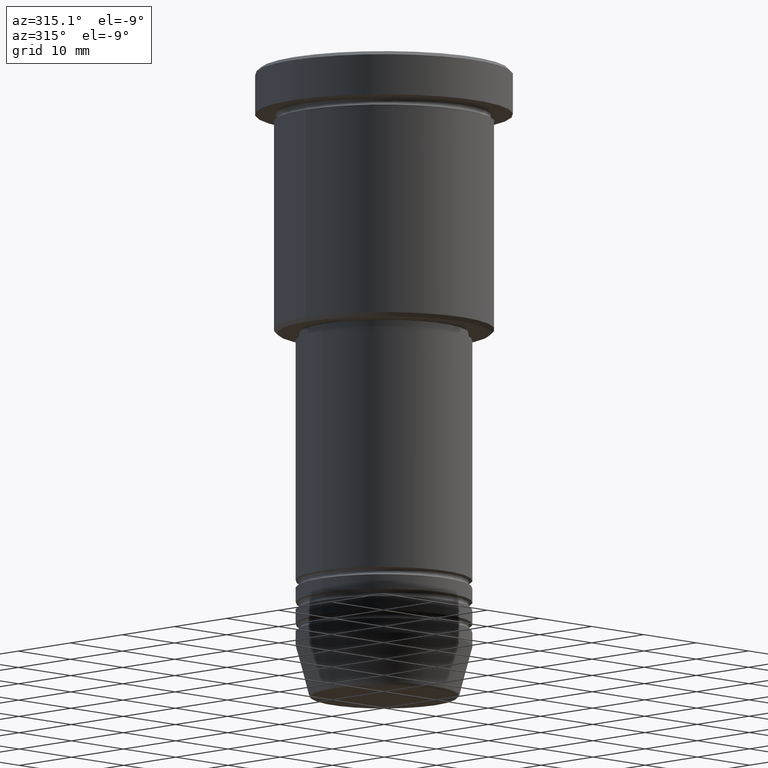
[diagram: clean part render]
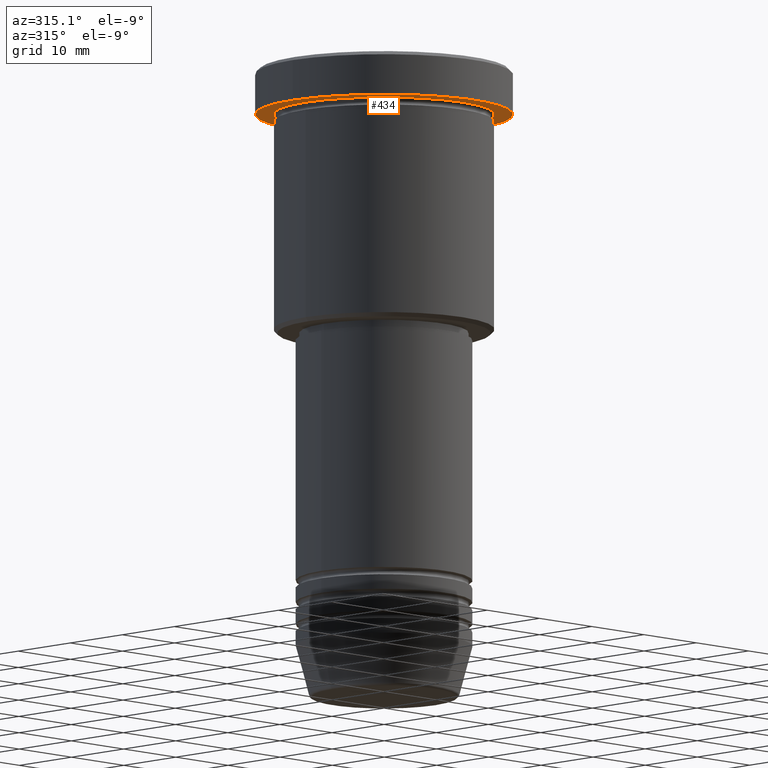
[diagram: same view with one face highlighted and labeled with its STEP entity id]
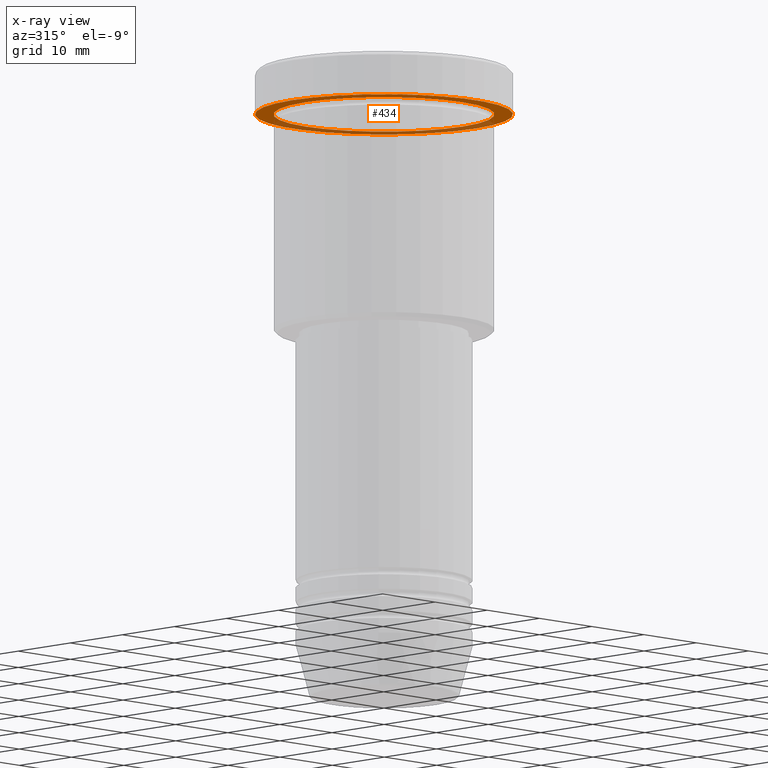
[diagram: x-ray of the same camera — body ghosted, the highlighted face saturated]
A machine part, auxiliary view. The second image highlights one B-rep face of the part: STEP entity #434.
The next image is the same camera in x-ray: the body ghosted, the highlighted face saturated — about 36% of this face is hidden behind the body in this view.
In plain terms, the highlighted planar face has unit normal (0, 0, -1).
Its self-contained STEP definition (entity closure, byte-faithful):
#22 = DIRECTION ( 'NONE',  ( -0.000000000000000000, -0.000000000000000000, 1.000000000000000000 ) ) ;
#78 = DIRECTION ( 'NONE',  ( -0.000000000000000000, -0.000000000000000000, 1.000000000000000000 ) ) ;
#101 = CIRCLE ( 'NONE', #631, 17.50000000000000000 ) ;
#120 = AXIS2_PLACEMENT_3D ( 'NONE', #124, #750, #1119 ) ;
#124 = CARTESIAN_POINT ( 'NONE',  ( 0.000000000000000000, 17.50000000000000000, -5.999999999999995559 ) ) ;
#176 = CARTESIAN_POINT ( 'NONE',  ( 15.00000000000000000, 1.836970198721029589E-15, -5.999999999999994671 ) ) ;
#179 = CARTESIAN_POINT ( 'NONE',  ( 0.000000000000000000, 0.000000000000000000, -5.999999999999995559 ) ) ;
#207 = PLANE ( 'NONE',  #120 ) ;
#215 = FACE_BOUND ( 'NONE', #786, .T. ) ;
#231 = EDGE_CURVE ( 'NONE', #483, #1072, #895, .T. ) ;
#235 = DIRECTION ( 'NONE',  ( -1.000000000000000000, 0.000000000000000000, 0.000000000000000000 ) ) ;
#348 = VERTEX_POINT ( 'NONE', #1032 ) ;
#387 = AXIS2_PLACEMENT_3D ( 'NONE', #662, #22, #235 ) ;
#399 = EDGE_CURVE ( 'NONE', #613, #348, #985, .T. ) ;
#412 = ORIENTED_EDGE ( 'NONE', *, *, #399, .F. ) ;
#434 = ADVANCED_FACE ( 'NONE', ( #215, #756 ), #207, .T. ) ;
#451 = DIRECTION ( 'NONE',  ( -0.000000000000000000, -0.000000000000000000, 1.000000000000000000 ) ) ;
#483 = VERTEX_POINT ( 'NONE', #176 ) ;
#530 = AXIS2_PLACEMENT_3D ( 'NONE', #659, #1021, #569 ) ;
#569 = DIRECTION ( 'NONE',  ( 1.000000000000000000, 0.000000000000000000, 0.000000000000000000 ) ) ;
#611 = AXIS2_PLACEMENT_3D ( 'NONE', #179, #451, #900 ) ;
#613 = VERTEX_POINT ( 'NONE', #1173 ) ;
#631 = AXIS2_PLACEMENT_3D ( 'NONE', #805, #78, #1168 ) ;
#659 = CARTESIAN_POINT ( 'NONE',  ( 0.000000000000000000, 0.000000000000000000, -5.999999999999995559 ) ) ;
#662 = CARTESIAN_POINT ( 'NONE',  ( 0.000000000000000000, 0.000000000000000000, -5.999999999999995559 ) ) ;
#750 = DIRECTION ( 'NONE',  ( 0.000000000000000000, 0.000000000000000000, -1.000000000000000000 ) ) ;
#756 = FACE_OUTER_BOUND ( 'NONE', #881, .T. ) ;
#773 = EDGE_CURVE ( 'NONE', #1072, #483, #892, .T. ) ;
#786 = EDGE_LOOP ( 'NONE', ( #972, #1056 ) ) ;
#805 = CARTESIAN_POINT ( 'NONE',  ( 0.000000000000000000, 0.000000000000000000, -5.999999999999995559 ) ) ;
#881 = EDGE_LOOP ( 'NONE', ( #1114, #412 ) ) ;
#892 = CIRCLE ( 'NONE', #387, 15.00000000000000000 ) ;
#894 = CARTESIAN_POINT ( 'NONE',  ( -15.00000000000000000, 0.000000000000000000, -5.999999999999994671 ) ) ;
#895 = CIRCLE ( 'NONE', #611, 15.00000000000000000 ) ;
#900 = DIRECTION ( 'NONE',  ( -1.000000000000000000, 0.000000000000000000, 0.000000000000000000 ) ) ;
#972 = ORIENTED_EDGE ( 'NONE', *, *, #773, .T. ) ;
#985 = CIRCLE ( 'NONE', #530, 17.50000000000000000 ) ;
#1021 = DIRECTION ( 'NONE',  ( -0.000000000000000000, -0.000000000000000000, 1.000000000000000000 ) ) ;
#1032 = CARTESIAN_POINT ( 'NONE',  ( 17.50000000000000000, 0.000000000000000000, -5.999999999999995559 ) ) ;
#1056 = ORIENTED_EDGE ( 'NONE', *, *, #231, .T. ) ;
#1072 = VERTEX_POINT ( 'NONE', #894 ) ;
#1087 = EDGE_CURVE ( 'NONE', #348, #613, #101, .T. ) ;
#1114 = ORIENTED_EDGE ( 'NONE', *, *, #1087, .F. ) ;
#1119 = DIRECTION ( 'NONE',  ( -1.000000000000000000, 0.000000000000000000, -0.000000000000000000 ) ) ;
#1168 = DIRECTION ( 'NONE',  ( 1.000000000000000000, 0.000000000000000000, 0.000000000000000000 ) ) ;
#1173 = CARTESIAN_POINT ( 'NONE',  ( -17.50000000000000000, 2.143131898507868248E-15, -5.999999999999995559 ) ) ;